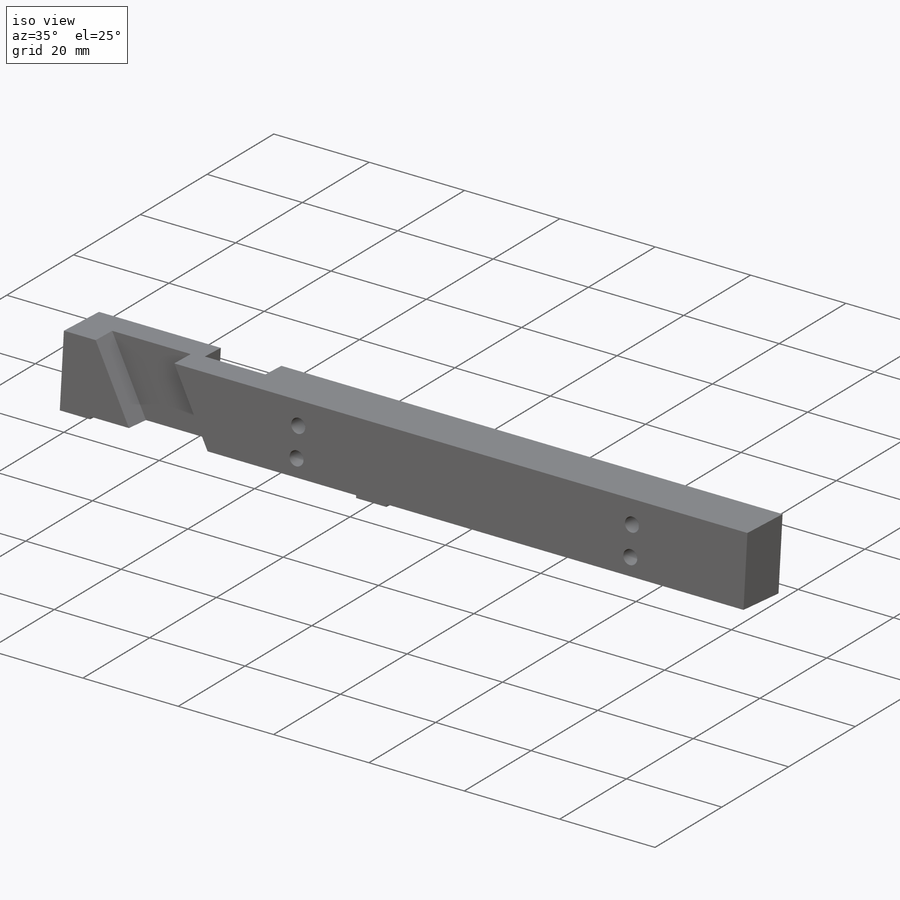
[diagram: iso view]
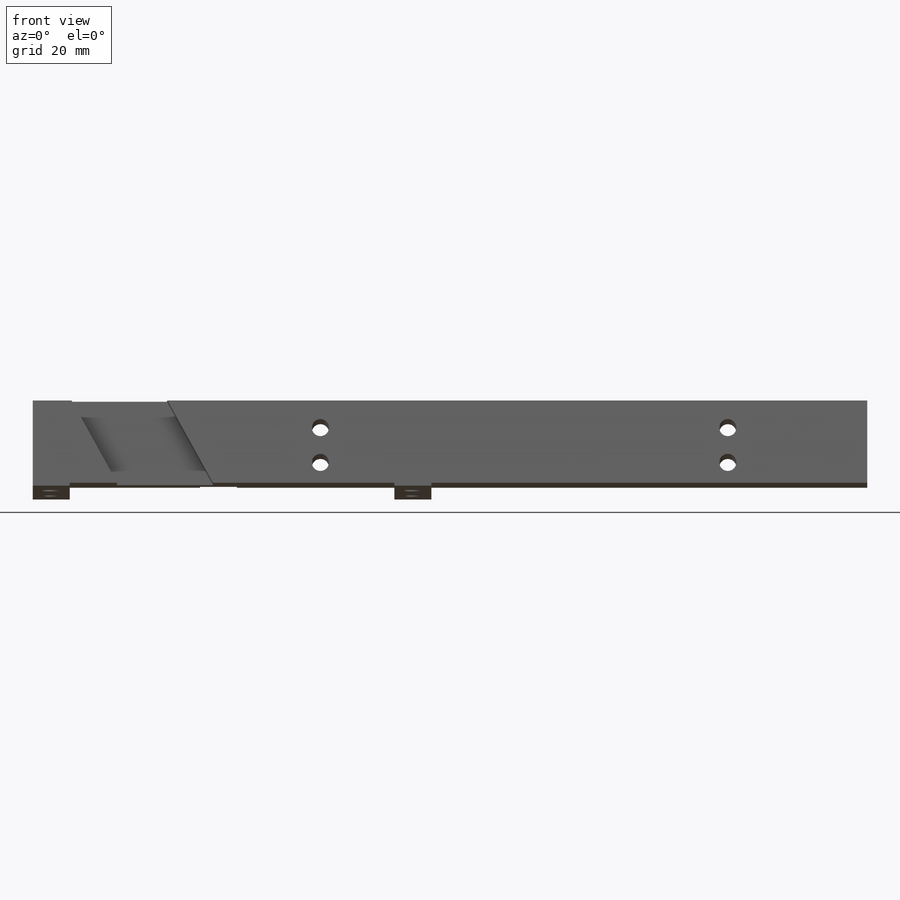
[diagram: front view]
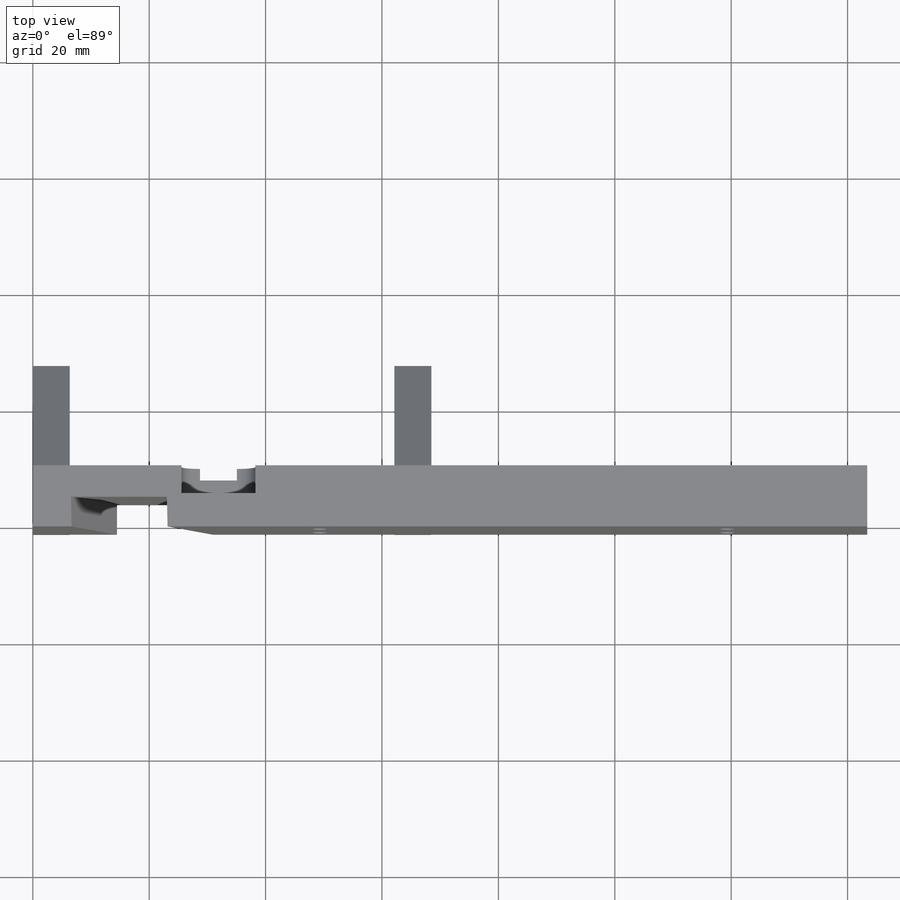
[diagram: top view]
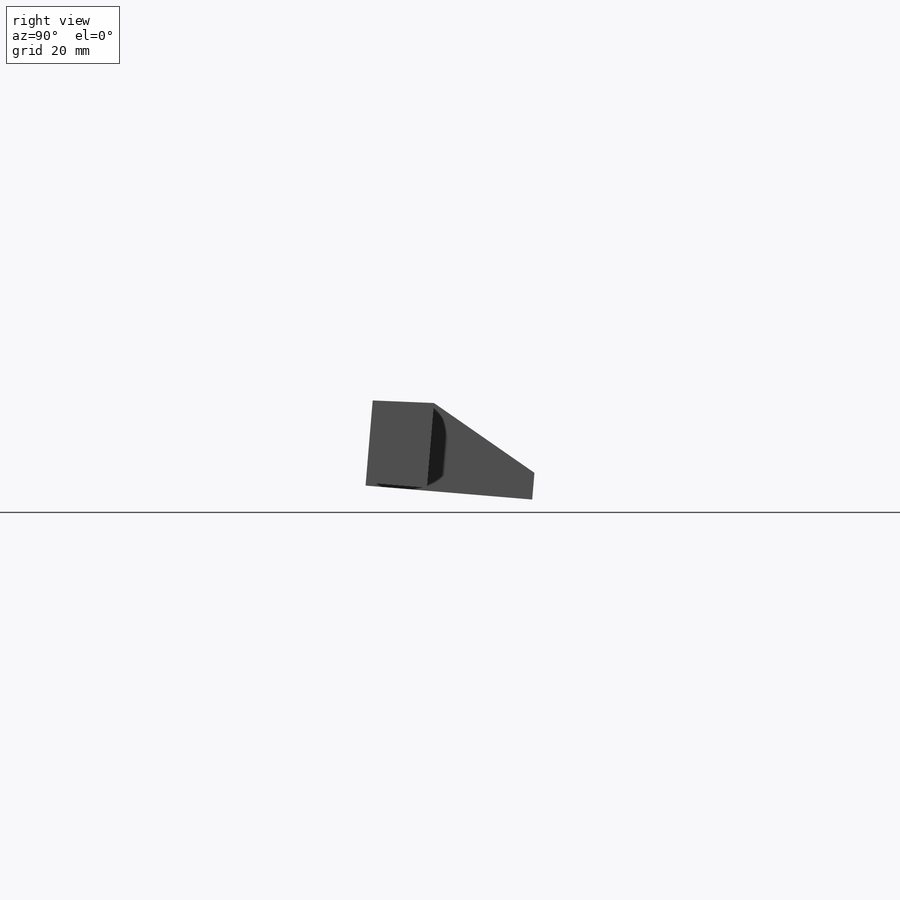
[diagram: right view]
SOLIDWORKS PART (.sldprt)
format: sldprt  version: not decoded by parser v0  size: 252,416 bytes
history: native  units: mm
features: sketch x2, cut_extrude x2, material x1, fillet x1 + 2 further entries (+21 scaffold rows collapsed; 3 parser-record rows omitted)
feature tree (32):
  scaffold x21  (default folders/planes/origin — collapsed)
  material  "Material <not specified>"
  "Axis2-FVTX Cage External Mounting Block-Base Decoupled_Mirrored"
  "Axis3-FVTX Cage External Mounting Block-Base Decoupled_Mirrored"
  parser-record x3  (decoder bookkeeping rows leaked as tree rows — omitted from the tree; the rows remain in map.json)
  sketch  "Sketch1"  dims[D1=12.7mm D2=19.2mm D3=6.35mm]
  cut_extrude  "Cut-Extrude1"  Depth=4.8mm
  fillet  "Fillet1"  Radius=3.175mm
  sketch  "Sketch2"  dims[D1=6.35mm]
  cut_extrude  "Cut-Extrude2"  Depth=2mm
decode coverage: 5 of 5 modeling features carry decoded parameters; 2 rows unclassified (native names shown)
note: suppression state not decoded; provenance and decode notes live in map.json
